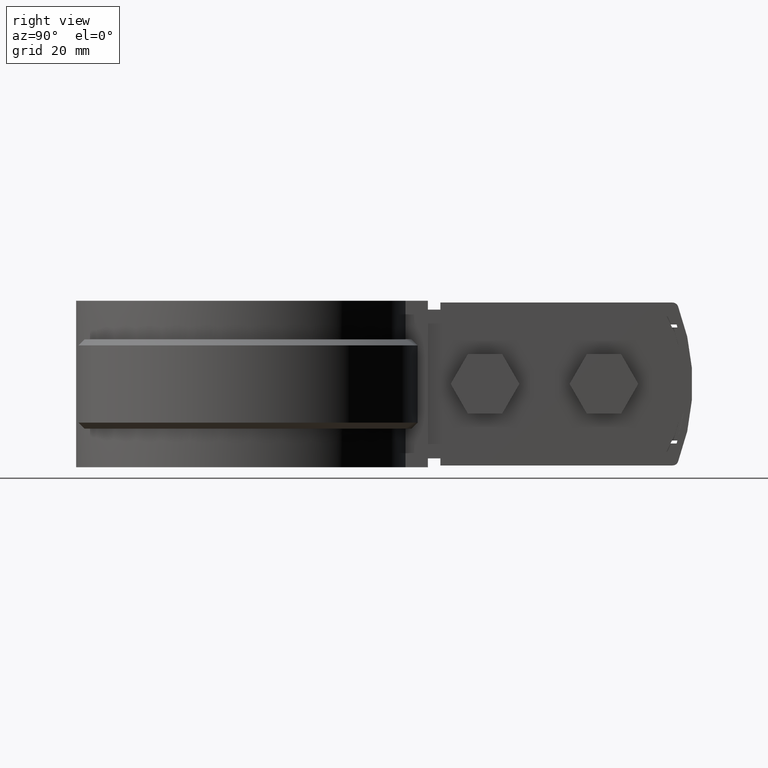
[diagram: clean part render]
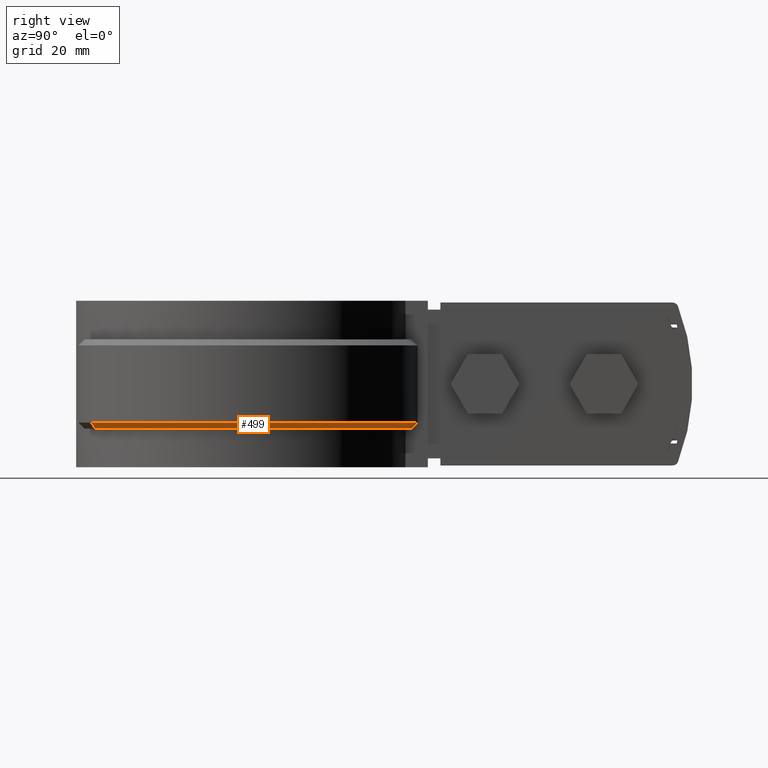
[diagram: same view with one face highlighted and labeled with its STEP entity id]
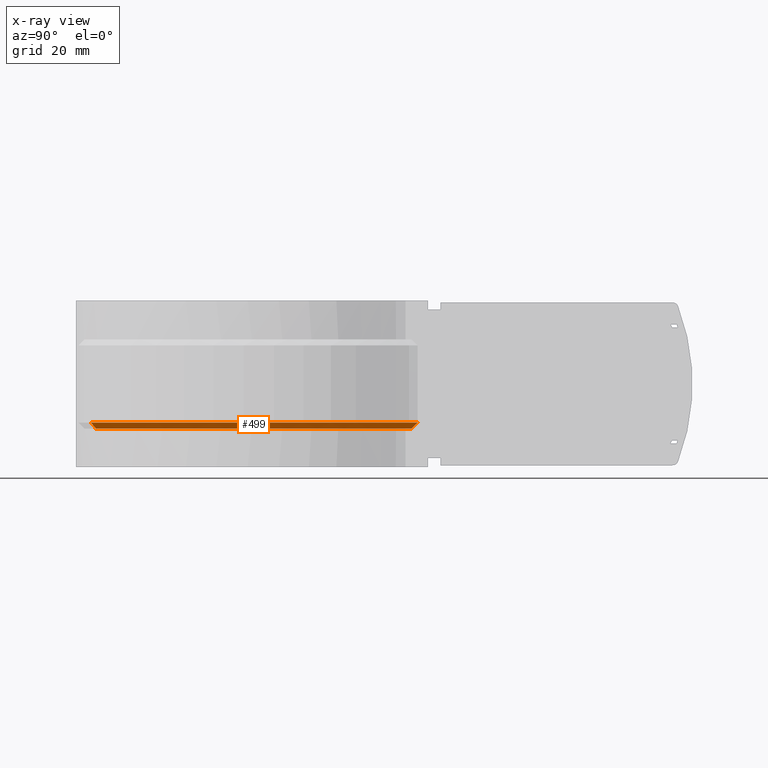
[diagram: x-ray of the same camera — body ghosted, the highlighted face saturated]
A machine part, right view. The second image highlights one B-rep face of the part: STEP entity #499.
The next image is the same camera in x-ray: the body ghosted, the highlighted face saturated — about 0% of this face is hidden behind the body in this view.
In plain terms, the highlighted conical surface has half-angle 45 deg.
Its self-contained STEP definition (entity closure, byte-faithful):
#499 = ADVANCED_FACE( '', ( #1010 ), #1011, .T. );
#1010 = FACE_OUTER_BOUND( '', #2382, .T. );
#1011 = CONICAL_SURFACE( '', #2383, 29.0950000000000, 0.785398163397448 );
#2382 = EDGE_LOOP( '', ( #5592, #5593, #5594, #5595 ) );
#2383 = AXIS2_PLACEMENT_3D( '', #5596, #5597, #5598 );
#5592 = ORIENTED_EDGE( '', *, *, #7767, .F. );
#5593 = ORIENTED_EDGE( '', *, *, #7774, .F. );
#5594 = ORIENTED_EDGE( '', *, *, #7734, .F. );
#5595 = ORIENTED_EDGE( '', *, *, #7777, .F. );
#5596 = CARTESIAN_POINT( '', ( 8.67361737988404E-016, 0.000000000000000, -20.0000000000000 ) );
#5597 = DIRECTION( '', ( 0.000000000000000, 0.000000000000000, 1.00000000000000 ) );
#5598 = DIRECTION( '', ( 1.00000000000000, 0.000000000000000, 0.000000000000000 ) );
#7734 = EDGE_CURVE( '', #8962, #8863, #8963, .T. );
#7767 = EDGE_CURVE( '', #9007, #9009, #9010, .F. );
#7774 = EDGE_CURVE( '', #8863, #9007, #9018, .T. );
#7777 = EDGE_CURVE( '', #9009, #8962, #9021, .F. );
#8863 = VERTEX_POINT( '', #12045 );
#8962 = VERTEX_POINT( '', #12325 );
#8963 = LINE( '', #12326, #12327 );
#9007 = VERTEX_POINT( '', #12419 );
#9009 = VERTEX_POINT( '', #12422 );
#9010 = B_SPLINE_CURVE_WITH_KNOTS( '', 3, ( #12423, #12424, #12425, #12426 ), .UNSPECIFIED., .F., .F., ( 4, 4 ), ( 707.140185523542, 707.141617626904 ), .UNSPECIFIED. );
#9018 = CIRCLE( '', #12437, 30.0950000000000 );
#9021 = CIRCLE( '', #12441, 29.0950000000000 );
#12045 = CARTESIAN_POINT( '', ( 15.9728671526465, -25.5064019399818, -19.0000000000000 ) );
#12325 = CARTESIAN_POINT( '', ( 15.4421189501993, -24.6588723855714, -20.0000000000000 ) );
#12326 = CARTESIAN_POINT( '', ( 15.4421189501993, -24.6588723855714, -20.0000000000000 ) );
#12327 = VECTOR( '', #14225, 1000.00000000000 );
#12419 = CARTESIAN_POINT( '', ( 6.10000000000001, 29.4703075145136, -19.0000000000000 ) );
#12422 = CARTESIAN_POINT( '', ( 6.10000000000001, 28.4483571581910, -20.0000000000000 ) );
#12423 = CARTESIAN_POINT( '', ( 6.10000000000001, 28.4483571581630, -20.0000000000274 ) );
#12424 = CARTESIAN_POINT( '', ( 6.10000000000001, 28.7891348895040, -19.6667961295086 ) );
#12425 = CARTESIAN_POINT( '', ( 6.10000000000001, 29.1297806771433, -19.3334584022013 ) );
#12426 = CARTESIAN_POINT( '', ( 6.10000000000001, 29.4703075145470, -18.9999999999673 ) );
#12437 = AXIS2_PLACEMENT_3D( '', #14284, #14285, #14286 );
#12441 = AXIS2_PLACEMENT_3D( '', #14291, #14292, #14293 );
#14225 = DIRECTION( '', ( 0.375295653052935, -0.599293895179626, 0.707106781186549 ) );
#14284 = CARTESIAN_POINT( '', ( 8.67361737988404E-016, 0.000000000000000, -19.0000000000000 ) );
#14285 = DIRECTION( '', ( 0.000000000000000, 0.000000000000000, 1.00000000000000 ) );
#14286 = DIRECTION( '', ( 1.00000000000000, 0.000000000000000, 0.000000000000000 ) );
#14291 = CARTESIAN_POINT( '', ( 8.67361737988404E-016, 0.000000000000000, -20.0000000000000 ) );
#14292 = DIRECTION( '', ( 0.000000000000000, 0.000000000000000, 1.00000000000000 ) );
#14293 = DIRECTION( '', ( 1.00000000000000, 0.000000000000000, 0.000000000000000 ) );